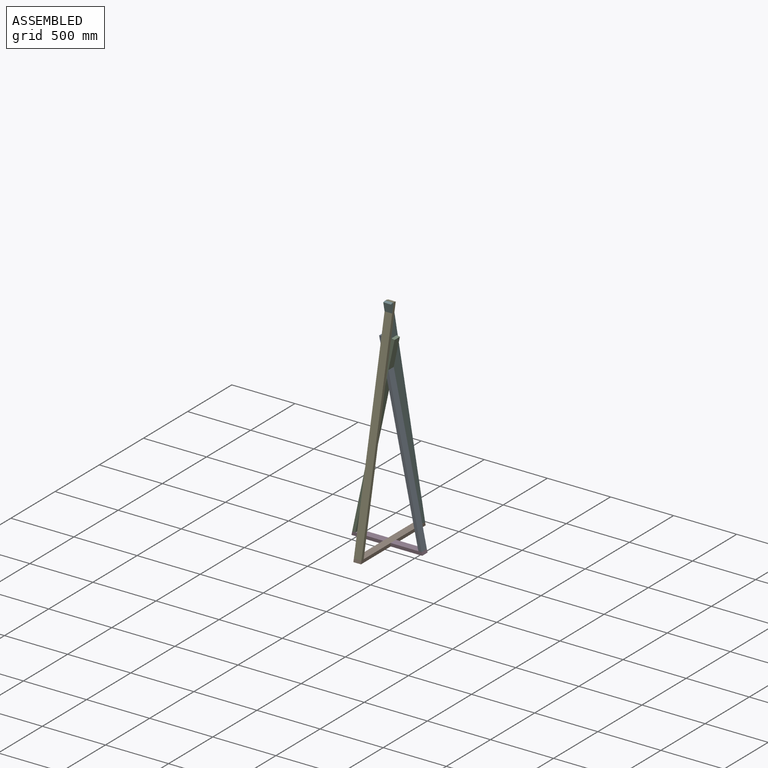
[diagram: assembled view]
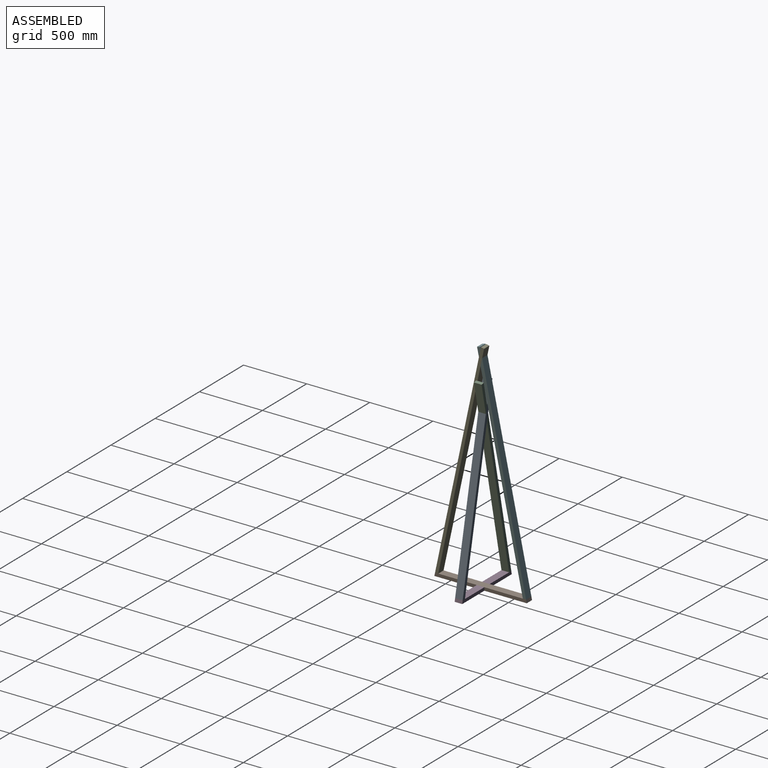
[diagram: assembled view, second angle]
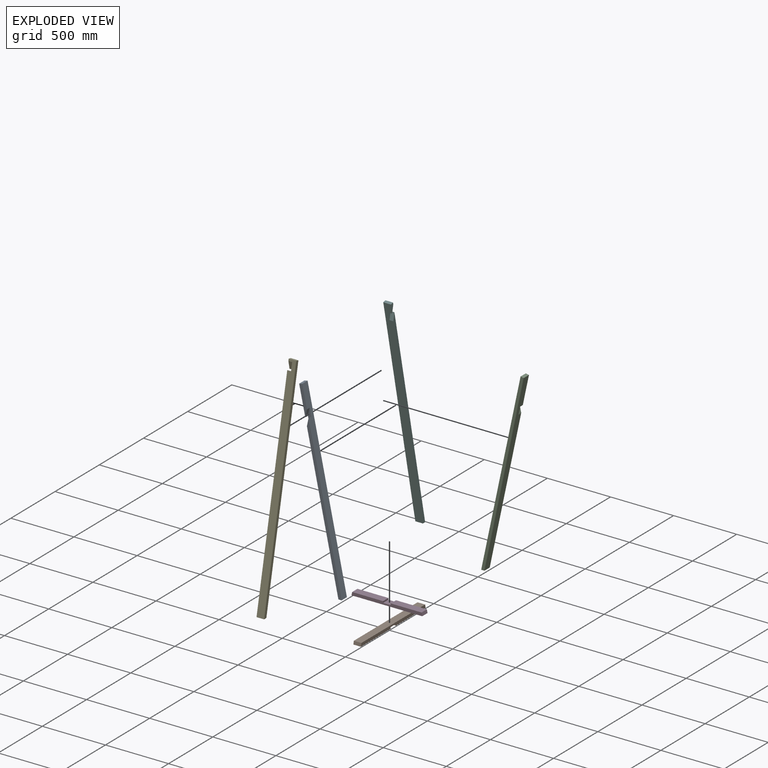
[diagram: exploded view]
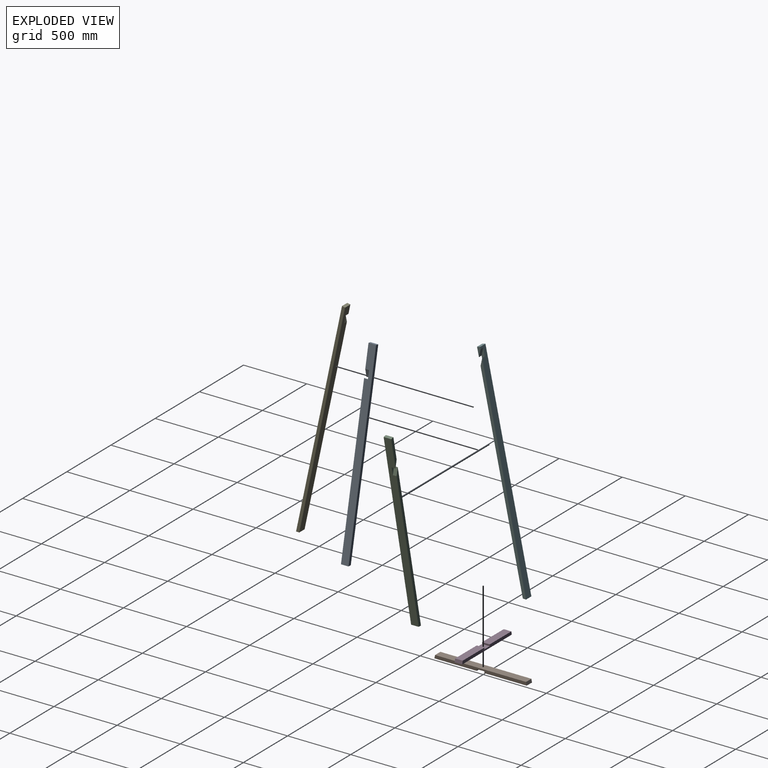
[diagram: exploded view, second angle]
ASSEMBLY  parts=6 mates=5
PART A: 10 faces, bbox 336.3x60x1467.2 mm
  f0: plane 1467.22x311.87mm, normal (0.98,0,0.21), area 88156.1mm2, adj f2,f3,f4,f5,f6,f7,f8,f9
  f1: plane 1462.02x310.76mm, normal (-0.98,0,-0.21), area 87837.2mm2, adj f2,f3,f4,f5,f6,f7,f8,f9
  f2: plane 233.57x61.32mm, normal (0,-1,0), area 5135mm2, adj f0,f1,f5,f8
  f3: plane 1233.65x275mm, normal (0,-1,0), area 30762mm2, adj f0,f1,f4,f9
  f4: plane 60x25.56mm, normal (0,0,-1), area 1533.5mm2, adj f0,f1,f3,f6
  f5: plane 60x24.45mm, normal (-0.21,0,0.98), area 1500mm2, adj f0,f1,f2,f6
  f6: plane 1467.22x336.32mm, normal (0,1,0), area 37433.6mm2, adj f0,f1,f4,f5
  f7: plane 120.24x25.56mm, normal (0,-1,0), area 1536.6mm2, adj f0,f1,f8,f9
  f8: plane 60.12x30mm, normal (0.98,0,-0.21), area 1843.9mm2, adj f0,f1,f2,f7
  f9: plane 60.12x30mm, normal (-0.98,0,0.21), area 1843.9mm2, adj f0,f1,f3,f7
PART B: 10 faces, bbox 731.7x60x25 mm
  f0: plane 335.87x60mm, normal (0,0,1), area 20152.3mm2, adj f1,f3,f6,f7
  f1: plane 731.74x25mm, normal (0,-1,0), area 17410.8mm2, adj f0,f2,f3,f4,f5,f7,f8,f9
  f2: plane 721.12x60mm, normal (0,0,-1), area 43267mm2, adj f1,f3,f5,f6
  f3: plane 60x25mm, normal (0.98,0,-0.21), area 1533.5mm2, adj f0,f1,f2,f6
  f4: plane 335.87x60mm, normal (0,0,1), area 20152.3mm2, adj f1,f5,f6,f8
  f5: plane 60x25mm, normal (-0.98,0,-0.21), area 1533.5mm2, adj f1,f2,f4,f6
  f6: plane 731.74x25mm, normal (0,1,0), area 17410.8mm2, adj f0,f2,f3,f4,f5,f7,f8,f9
  f7: plane 60x12.5mm, normal (-1,0,0), area 750mm2, adj f0,f1,f6,f9
  f8: plane 60x12.5mm, normal (1,0,0), area 750mm2, adj f1,f4,f6,f9
  f9: plane 60x60mm, normal (0,0,1), area 3600mm2, adj f1,f6,f7,f8
PART C: 10 faces, bbox 336.3x60x1467.2 mm
  f0: plane 1233.65x275mm, normal (0,1,0), area 30762mm2, adj f2,f3,f4,f7
  f1: plane 233.57x61.32mm, normal (0,1,0), area 5135mm2, adj f2,f4,f5,f8
  f2: plane 1467.22x311.87mm, normal (-0.98,0,0.21), area 88156.1mm2, adj f0,f1,f3,f5,f6,f7,f8,f9
  f3: plane 60x25.56mm, normal (0,0,-1), area 1533.5mm2, adj f0,f2,f4,f6
  f4: plane 1462.02x310.76mm, normal (0.98,0,-0.21), area 87837.2mm2, adj f0,f1,f3,f5,f6,f7,f8,f9
  f5: plane 60x24.45mm, normal (0.21,0,0.98), area 1500mm2, adj f1,f2,f4,f6
  f6: plane 1467.22x336.32mm, normal (0,-1,0), area 37433.6mm2, adj f2,f3,f4,f5
  f7: plane 60.12x30mm, normal (0.98,0,0.21), area 1843.9mm2, adj f0,f2,f4,f9
  f8: plane 60.12x30mm, normal (-0.98,0,-0.21), area 1843.9mm2, adj f1,f2,f4,f9
  f9: plane 120.24x25.56mm, normal (0,1,0), area 1536.6mm2, adj f2,f4,f7,f8
PART D: 10 faces, bbox 560.6x60x25 mm
  f0: plane 245x60mm, normal (0,0,1), area 14700mm2, adj f1,f3,f6,f7
  f1: plane 560.63x25mm, normal (0,-1,0), area 13132.8mm2, adj f0,f2,f3,f4,f5,f7,f8,f9
  f2: plane 245x60mm, normal (0,0,1), area 14700mm2, adj f1,f5,f6,f8
  f3: plane 60x25mm, normal (-0.98,0,0.21), area 1533.5mm2, adj f0,f1,f4,f6
  f4: plane 560.63x60mm, normal (0,0,-1), area 33637.7mm2, adj f1,f3,f5,f6
  f5: plane 60x25mm, normal (0.98,0,0.21), area 1533.5mm2, adj f1,f2,f4,f6
  f6: plane 560.63x25mm, normal (0,1,0), area 13132.8mm2, adj f0,f2,f3,f4,f5,f7,f8,f9
  f7: plane 60x12.5mm, normal (1,0,0), area 750mm2, adj f0,f1,f6,f9
  f8: plane 60x12.5mm, normal (-1,0,0), area 750mm2, adj f1,f2,f6,f9
  f9: plane 60x60mm, normal (0,0,1), area 3600mm2, adj f1,f6,f7,f8
PART E: 10 faces, bbox 388.3x60x1711.8 mm
  f0: plane 1711.76x363.85mm, normal (-0.98,0,0.21), area 103156.1mm2, adj f2,f3,f4,f5,f6,f7,f8,f9
  f1: plane 1706.56x362.74mm, normal (0.98,0,-0.21), area 102837.2mm2, adj f2,f3,f4,f5,f6,f7,f8,f9
  f2: plane 1636.17x360.56mm, normal (0,1,0), area 41049.8mm2, adj f0,f1,f3,f7
  f3: plane 60x25.56mm, normal (0,0,-1), area 1533.5mm2, adj f0,f1,f2,f5
  f4: plane 60x24.45mm, normal (0.21,0,0.98), area 1500mm2, adj f0,f1,f5,f6
  f5: plane 1711.76x388.3mm, normal (0,-1,0), area 43683.6mm2, adj f0,f1,f3,f4
  f6: plane 75.59x27.74mm, normal (0,1,0), area 1097.1mm2, adj f0,f1,f4,f8
  f7: plane 60.12x30mm, normal (0.98,0,0.21), area 1843.9mm2, adj f0,f1,f2,f9
  f8: plane 60.12x30mm, normal (-0.98,0,-0.21), area 1843.9mm2, adj f0,f1,f6,f9
  f9: plane 120.24x25.56mm, normal (0,1,0), area 1536.6mm2, adj f0,f1,f7,f8
PART F: 10 faces, bbox 388.3x60x1711.8 mm
  f0: plane 75.59x27.74mm, normal (0,-1,0), area 1097.1mm2, adj f2,f3,f4,f8
  f1: plane 60x25.56mm, normal (0,0,-1), area 1533.5mm2, adj f2,f4,f5,f6
  f2: plane 1711.76x363.85mm, normal (0.98,0,0.21), area 103156.1mm2, adj f0,f1,f3,f5,f6,f7,f8,f9
  f3: plane 60x24.45mm, normal (-0.21,0,0.98), area 1500mm2, adj f0,f2,f4,f6
  f4: plane 1706.56x362.74mm, normal (-0.98,0,-0.21), area 102837.2mm2, adj f0,f1,f3,f5,f6,f7,f8,f9
  f5: plane 1636.17x360.56mm, normal (0,-1,0), area 41049.8mm2, adj f1,f2,f4,f9
  f6: plane 1711.76x388.3mm, normal (0,1,0), area 43683.6mm2, adj f1,f2,f3,f4
  f7: plane 120.24x25.56mm, normal (0,-1,0), area 1536.6mm2, adj f2,f4,f8,f9
  f8: plane 60.12x30mm, normal (0.98,0,-0.21), area 1843.9mm2, adj f0,f2,f4,f7
  f9: plane 60.12x30mm, normal (-0.98,0,0.21), area 1843.9mm2, adj f2,f4,f5,f7
PLACE A t=(275,30,25)mm
PLACE B rot(axis=(-0.71,-0.71,0),180deg) t=(-30,360.56,25)mm
PLACE C t=(-275,30,25)mm
PLACE D t=(0,30,0)mm
PLACE E rot(axis=(0,0,1),90deg) t=(-30,-360.56,25)mm
PLACE F rot(axis=(0,0,1),90deg) t=(-30,360.56,25)mm
MATE fastened F.f1 <-> B.f2  axis (0,0,-1) through (-30,360.56,25)mm
MATE fastened F.f7 <-> E.f9  axis (1,0,0) through (0,0,1661.17)mm
MATE fastened D.f0 <-> C.f3  axis (0,0,1) through (-275,-30,25)mm
MATE fastened C.f9 <-> A.f7  axis (0,1,0) through (0,0,1258.65)mm
MATE fastened D.f9 <-> B.f9  axis (0,0,1) through (0,0,12.5)mm
